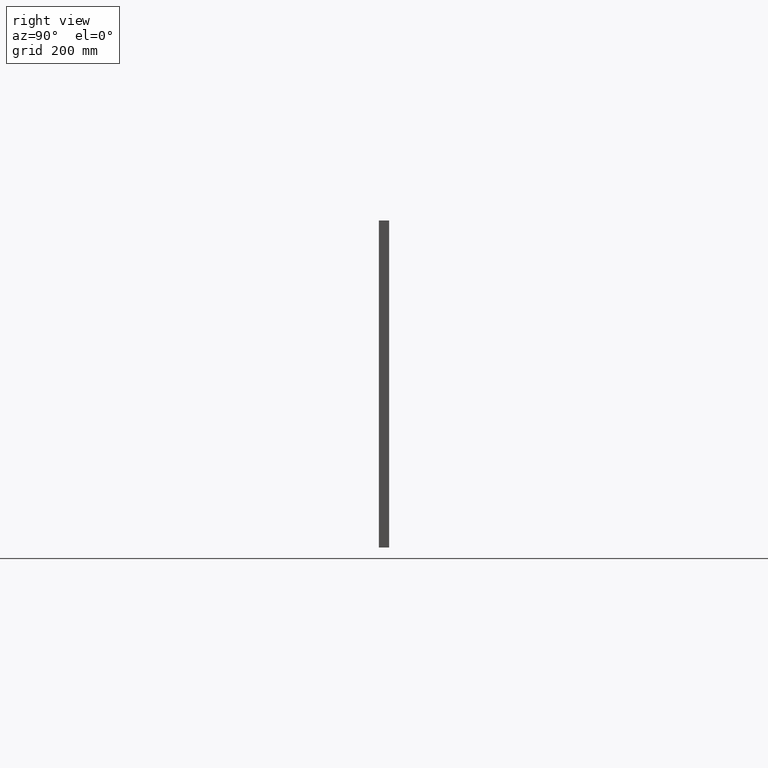
[diagram: clean part render]
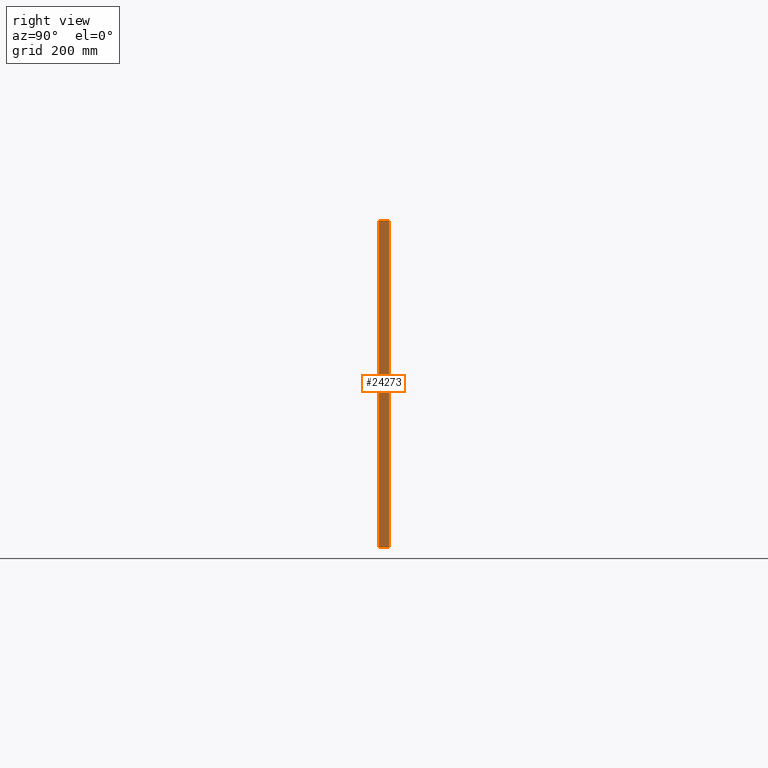
[diagram: same view with one face highlighted and labeled with its STEP entity id]
A machine part, right view. The second image highlights one B-rep face of the part: STEP entity #24273.
In plain terms, the highlighted planar face has unit normal (-1, 0, -0).
Its self-contained STEP definition (entity closure, byte-faithful):
#72 = VECTOR ( 'NONE', #1303, 1000.000000000000000 ) ;
#1303 = DIRECTION ( 'NONE',  ( -0.000000000000000000, 0.000000000000000000, -1.000000000000000000 ) ) ;
#1647 = EDGE_CURVE ( 'NONE', #17697, #24631, #34730, .T. ) ;
#2103 = ORIENTED_EDGE ( 'NONE', *, *, #27080, .F. ) ;
#2554 = CARTESIAN_POINT ( 'NONE',  ( 600.0000000000000000, 19.00000000000000000, 300.0000000000001705 ) ) ;
#2561 = PLANE ( 'NONE',  #12326 ) ;
#4166 = EDGE_LOOP ( 'NONE', ( #2103, #23027, #31319, #30252 ) ) ;
#4657 = DIRECTION ( 'NONE',  ( -1.850371707708594563E-16, 0.000000000000000000, 1.000000000000000000 ) ) ;
#4990 = EDGE_CURVE ( 'NONE', #6713, #17112, #18941, .T. ) ;
#5520 = DIRECTION ( 'NONE',  ( 0.000000000000000000, 1.000000000000000000, 0.000000000000000000 ) ) ;
#6713 = VERTEX_POINT ( 'NONE', #2554 ) ;
#8163 = DIRECTION ( 'NONE',  ( -0.000000000000000000, -1.000000000000000000, -0.000000000000000000 ) ) ;
#11079 = CARTESIAN_POINT ( 'NONE',  ( 600.0000000000001137, 19.00000000000000000, -299.9999999999998295 ) ) ;
#11223 = LINE ( 'NONE', #14452, #17717 ) ;
#12326 = AXIS2_PLACEMENT_3D ( 'NONE', #11079, #31229, #4657 ) ;
#14452 = CARTESIAN_POINT ( 'NONE',  ( 600.0000000000000000, 19.00000000000000000, 300.0000000000001705 ) ) ;
#15432 = CARTESIAN_POINT ( 'NONE',  ( 600.0000000000001137, 0.000000000000000000, -299.9999999999998295 ) ) ;
#17112 = VERTEX_POINT ( 'NONE', #24204 ) ;
#17683 = VECTOR ( 'NONE', #8163, 1000.000000000000000 ) ;
#17697 = VERTEX_POINT ( 'NONE', #22260 ) ;
#17717 = VECTOR ( 'NONE', #5520, 1000.000000000000000 ) ;
#18135 = DIRECTION ( 'NONE',  ( 1.850371707708594563E-16, -0.000000000000000000, -1.000000000000000000 ) ) ;
#18941 = LINE ( 'NONE', #33018, #72 ) ;
#20398 = VECTOR ( 'NONE', #18135, 1000.000000000000000 ) ;
#22260 = CARTESIAN_POINT ( 'NONE',  ( 599.9999999999998863, 0.000000000000000000, 300.0000000000001705 ) ) ;
#22570 = CARTESIAN_POINT ( 'NONE',  ( 600.0000000000001137, 19.00000000000000000, -299.9999999999998295 ) ) ;
#23027 = ORIENTED_EDGE ( 'NONE', *, *, #4990, .F. ) ;
#23412 = EDGE_CURVE ( 'NONE', #17697, #6713, #11223, .T. ) ;
#24204 = CARTESIAN_POINT ( 'NONE',  ( 600.0000000000001137, 19.00000000000000000, -299.9999999999998295 ) ) ;
#24273 = ADVANCED_FACE ( 'NONE', ( #33884 ), #2561, .F. ) ;
#24631 = VERTEX_POINT ( 'NONE', #15432 ) ;
#26884 = CARTESIAN_POINT ( 'NONE',  ( 600.0000000000001137, 0.000000000000000000, -299.9999999999998295 ) ) ;
#27080 = EDGE_CURVE ( 'NONE', #17112, #24631, #37011, .T. ) ;
#30252 = ORIENTED_EDGE ( 'NONE', *, *, #1647, .T. ) ;
#31229 = DIRECTION ( 'NONE',  ( -1.000000000000000000, 0.000000000000000000, -1.850371707708594563E-16 ) ) ;
#31319 = ORIENTED_EDGE ( 'NONE', *, *, #23412, .F. ) ;
#33018 = CARTESIAN_POINT ( 'NONE',  ( 600.0000000000000000, 19.00000000000000000, 0.000000000000000000 ) ) ;
#33884 = FACE_OUTER_BOUND ( 'NONE', #4166, .T. ) ;
#34730 = LINE ( 'NONE', #26884, #20398 ) ;
#37011 = LINE ( 'NONE', #22570, #17683 ) ;